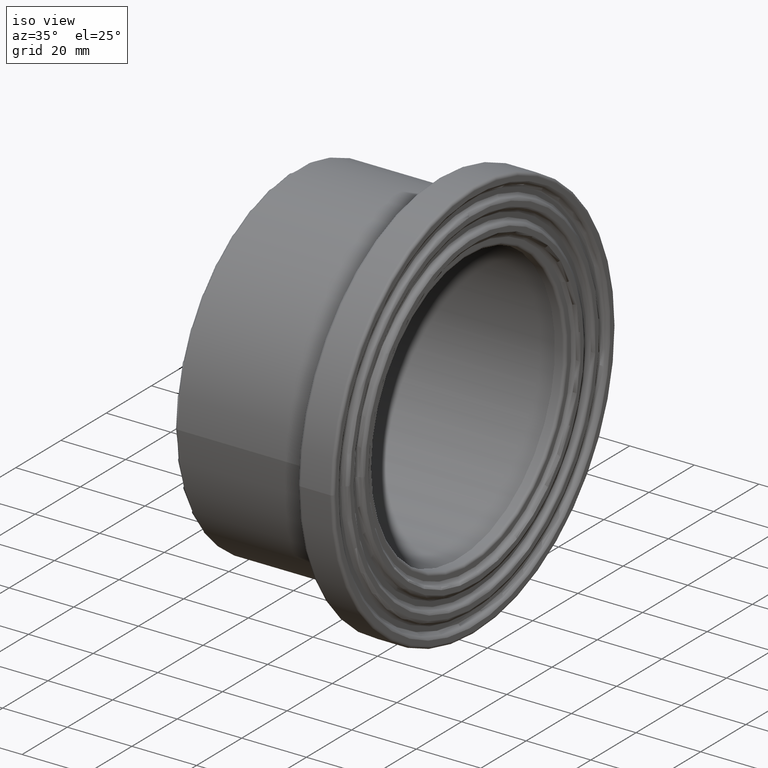
[diagram: clean part render]
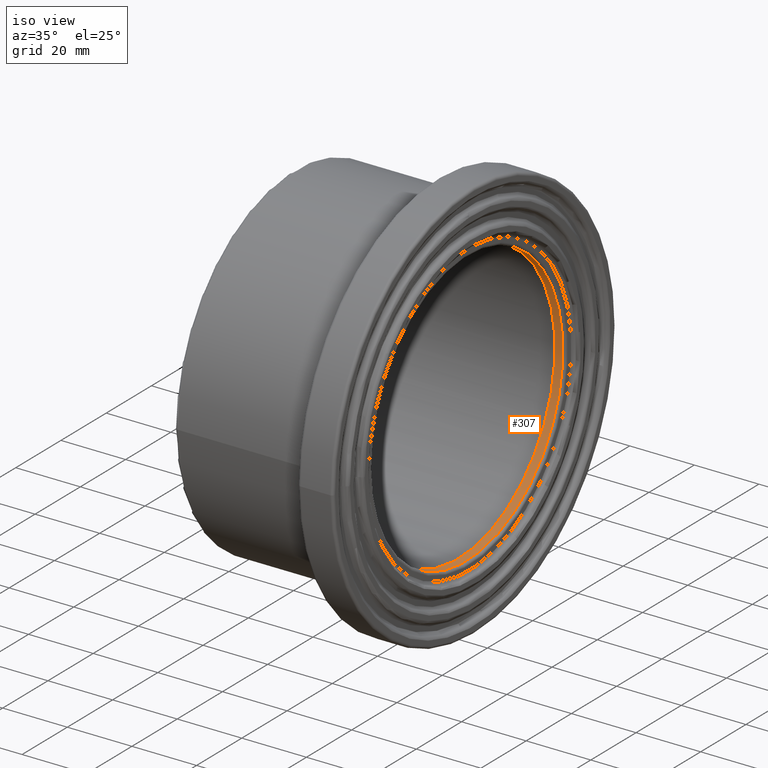
[diagram: same view with one face highlighted and labeled with its STEP entity id]
A machine part, iso view. The second image highlights one B-rep face of the part: STEP entity #307.
In plain terms, the highlighted cylindrical surface (bore or boss wall) has radius 42.75 mm, axis along (-1, 0, 0).
Its self-contained STEP definition (entity closure, byte-faithful):
#20=CYLINDRICAL_SURFACE('',#339,42.75);
#45=FACE_BOUND('',#99,.T.);
#68=FACE_OUTER_BOUND('',#98,.T.);
#98=EDGE_LOOP('',(#233));
#99=EDGE_LOOP('',(#234));
#145=CIRCLE('',#336,42.75);
#147=CIRCLE('',#340,42.75);
#168=VERTEX_POINT('',#477);
#171=VERTEX_POINT('',#519);
#196=EDGE_CURVE('',#168,#168,#145,.T.);
#199=EDGE_CURVE('',#171,#171,#147,.T.);
#233=ORIENTED_EDGE('',*,*,#199,.T.);
#234=ORIENTED_EDGE('',*,*,#196,.F.);
#307=ADVANCED_FACE('',(#68,#45),#20,.F.);
#336=AXIS2_PLACEMENT_3D('',#478,#385,#386);
#339=AXIS2_PLACEMENT_3D('',#518,#391,#392);
#340=AXIS2_PLACEMENT_3D('',#520,#393,#394);
#385=DIRECTION('center_axis',(-1.,0.,0.));
#386=DIRECTION('ref_axis',(0.,1.,6.12323399573677E-17));
#391=DIRECTION('center_axis',(-1.,0.,0.));
#392=DIRECTION('ref_axis',(0.,-1.,0.));
#393=DIRECTION('center_axis',(-1.,0.,0.));
#394=DIRECTION('ref_axis',(0.,0.,1.));
#477=CARTESIAN_POINT('',(53.45,-42.75,2.61768253317747E-15));
#478=CARTESIAN_POINT('Origin',(53.45,0.,0.));
#518=CARTESIAN_POINT('Origin',(52.675,0.,0.));
#519=CARTESIAN_POINT('',(51.,-42.75,0.));
#520=CARTESIAN_POINT('Origin',(51.,0.,0.));